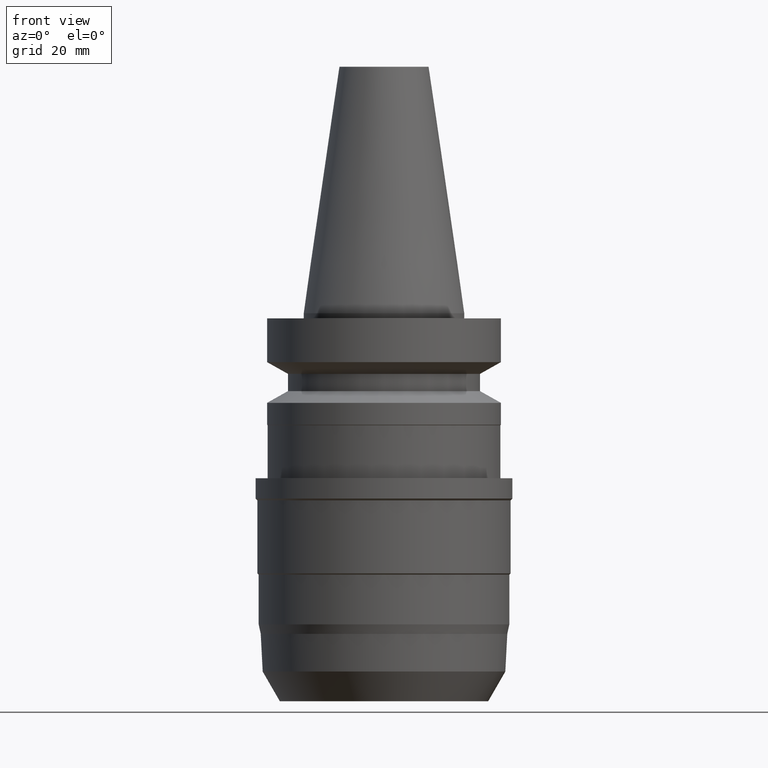
[diagram: clean part render]
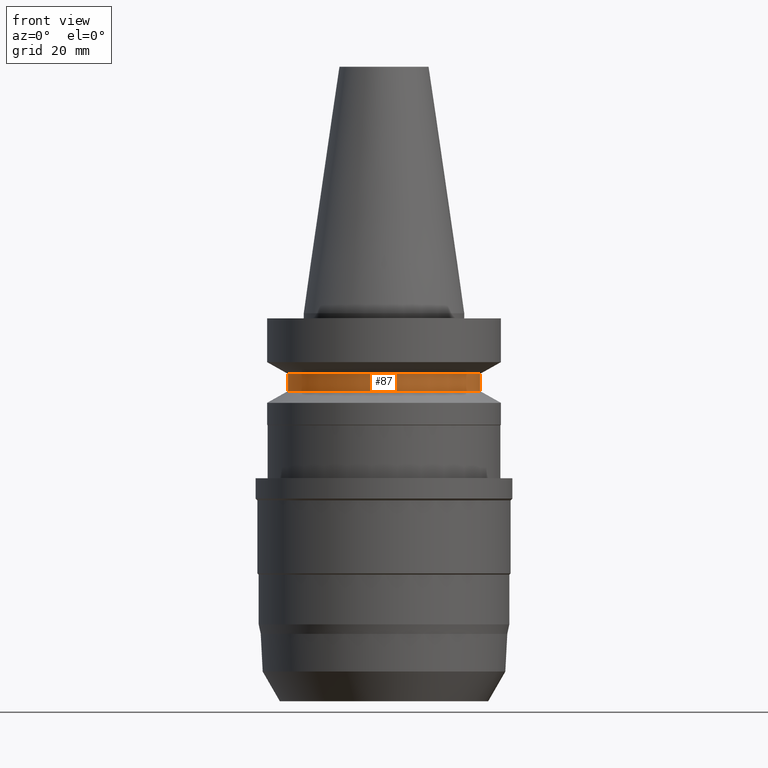
[diagram: same view with one face highlighted and labeled with its STEP entity id]
A machine part, front view. The second image highlights one B-rep face of the part: STEP entity #87.
In plain terms, the highlighted cylindrical surface (bore or boss wall) has radius 19 mm, axis along (0, 0, -1).
Its self-contained STEP definition (entity closure, byte-faithful):
#76=EDGE_CURVE('Unnamed[1]',#204,#204,#205,.T.);
#87=ADVANCED_FACE('Unnamed[1]',(#221,#222),#223,.T.);
#105=EDGE_CURVE('Unnamed[1]',#251,#251,#252,.T.);
#204=VERTEX_POINT('',#381);
#205=CIRCLE('',#382,19.0);
#221=FACE_BOUND('',#402,.T.);
#222=FACE_BOUND('',#403,.T.);
#223=CYLINDRICAL_SURFACE('',#404,19.0);
#251=VERTEX_POINT('',#439);
#252=CIRCLE('',#440,19.0);
#381=CARTESIAN_POINT('',(9.36279151221199E-016,19.0,-15.29059892));
#382=AXIS2_PLACEMENT_3D('',#585,#586,#587);
#402=EDGE_LOOP('',(#604));
#403=EDGE_LOOP('',(#605));
#404=AXIS2_PLACEMENT_3D('',#606,#607,#608);
#439=CARTESIAN_POINT('',(7.29240495619202E-016,19.0,-11.90940108));
#440=AXIS2_PLACEMENT_3D('',#639,#640,#641);
#585=CARTESIAN_POINT('',(9.36279151221199E-016,1.8725583024424E-015,-15.29059892));
#586=DIRECTION('',(6.12323399573677E-017,1.22464679914735E-016,-1.0));
#587=DIRECTION('',(-1.23259516440783E-032,1.0,1.22464679914735E-016));
#604=ORIENTED_EDGE('',*,*,#76,.F.);
#605=ORIENTED_EDGE('',*,*,#105,.T.);
#606=CARTESIAN_POINT('',(8.32759823420201E-016,1.6655196468404E-015,-13.6));
#607=DIRECTION('',(6.12323399573677E-017,1.22464679914735E-016,-1.0));
#608=DIRECTION('',(-1.23259516440783E-032,1.0,1.22464679914735E-016));
#639=CARTESIAN_POINT('',(7.29240495619202E-016,1.4584809912384E-015,-11.90940108));
#640=DIRECTION('',(6.12323399573677E-017,1.22464679914735E-016,-1.0));
#641=DIRECTION('',(-1.23259516440783E-032,1.0,1.22464679914735E-016));